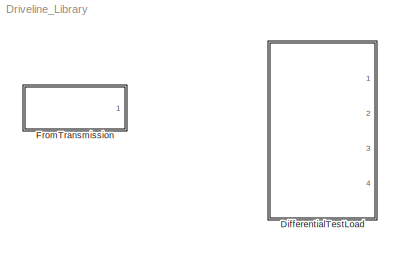
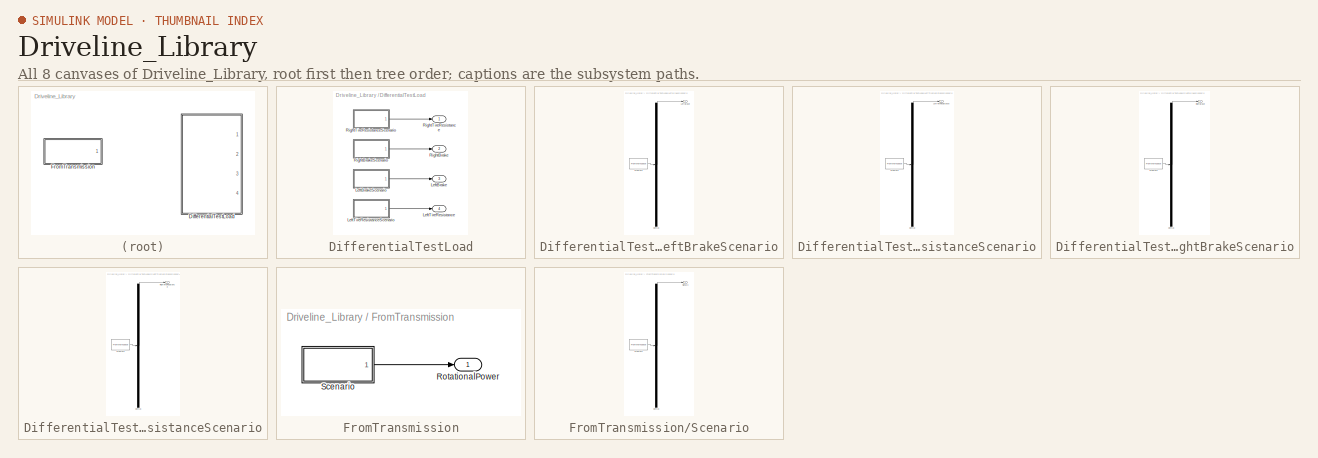
[diagram: thumbnail index - all 8 canvases of the model, root first then tree order]
MODEL Driveline_Library
KIND model
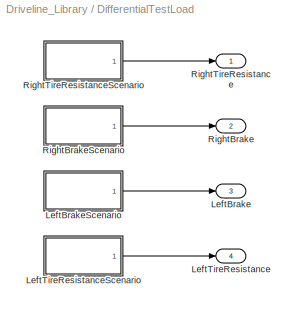
BLOCK [SubSystem] DifferentialTestLoad
  FunctionWithSeparateData = off
  MaskHideContents = off
  MinAlgLoopOccurrences = off
  Opaque = off
  Ports = [0, 4]
  PropExecContextOutsideSubsystem = off
  RTWSystemCode = Auto
  RequestExecContextInheritance = off
  SID = 4
BLOCK [Outport] DifferentialTestLoad/LeftBrake
  IconDisplay = Port number
  OutDataType = fixdt(1, 16)
  OutScaling = 2^0
  Port = 3
  SID = 10
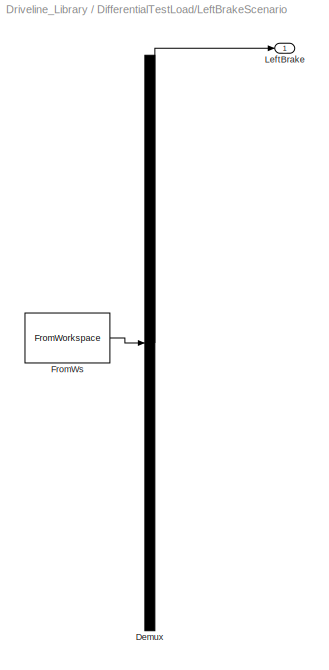
BLOCK [SubSystem] DifferentialTestLoad/LeftBrakeScenario
  ClipboardFcn = sigbuilder_block('clipboard');
  CloseFcn = sigbuilder_block('close');
  CopyFcn = sigbuilder_block('copy');
  DeleteFcn = sigbuilder_block('delete');
  FunctionWithSeparateData = off
  LoadFcn = sigbuilder_block('load');
  MaskCapabilities = slmaskedcaps(gcbh)
  MaskDescription = Create and generate interchangeable groups of signals whose waveforms are piecewise linear.
  MaskDisplay = plot(0,0,100,100,[10,10,40,40,10],[80,20,20,80,80],[40,10],[50,50], [40,27,10],[65,72,56],[40,25,25,10],[28,28,43,43]);
  MaskHideContents = on
  MaskIconFrame = on
  MaskIconOpaque = off
  MaskIconRotate = port
  MaskIconUnits = autoscale
  MaskInitialization = if ~strcmp(get_param(bdroot(gcbh),'SimulationStatus'),'stopped') tuvar = sigbuilder_block('maskInit'); end
  MaskPortRotate = default
  MaskSelfModifiable = on
  MaskType = Sigbuilder block
  MinAlgLoopOccurrences = off
  ModelCloseFcn = sigbuilder_block('modelClose');
  NameChangeFcn = sigbuilder_block('namechange');
  Opaque = off
  OpenFcn = sigbuilder_block('open',[414 28.5 423.75 361.5 ]);
  Ports = [0, 1]
  PreSaveFcn = sigbuilder_block('preSave');
  PropExecContextOutsideSubsystem = off
  RTWSystemCode = Auto
  RequestExecContextInheritance = off
  SID = 25
  StartFcn = sigbuilder_block('start');
  StopFcn = sigbuilder_block('stop');
  Tag = STV Subsys
BLOCK [Demux] DifferentialTestLoad/LeftBrakeScenario/Demux
  Outputs = 1
  Ports = [1, 1]
  SID = 10
  Tag = STV Demux
BLOCK [FromWorkspace] DifferentialTestLoad/LeftBrakeScenario/FromWs
  SID = 11
  SampleTime = 0
  SigBuilderData = DataTag0
  Tag = STV FromWs
  VariableName = tuvar
  VnvData = DataTag1
  ZeroCross = on
BLOCK [Outport] DifferentialTestLoad/LeftBrakeScenario/LeftBrake
  IconDisplay = Port number
  SID = 5
  Tag = STV Outport
BLOCK [Outport] DifferentialTestLoad/LeftTireResistance
  IconDisplay = Port number
  OutDataType = fixdt(1, 16)
  OutScaling = 2^0
  Port = 4
  SID = 12
BLOCK [SubSystem] DifferentialTestLoad/LeftTireResistanceScenario
  ClipboardFcn = sigbuilder_block('clipboard');
  CloseFcn = sigbuilder_block('close');
  CopyFcn = sigbuilder_block('copy');
  DeleteFcn = sigbuilder_block('delete');
  FunctionWithSeparateData = off
  LoadFcn = sigbuilder_block('load');
  MaskCapabilities = slmaskedcaps(gcbh)
  MaskDescription = Create and generate interchangeable groups of signals whose waveforms are piecewise linear.
  MaskDisplay = plot(0,0,100,100,[10,10,40,40,10],[80,20,20,80,80],[40,10],[50,50], [40,27,10],[65,72,56],[40,25,25,10],[28,28,43,43]);
  MaskHideContents = on
  MaskIconFrame = on
  MaskIconOpaque = off
  MaskIconRotate = port
  MaskIconUnits = autoscale
  MaskInitialization = if ~strcmp(get_param(bdroot(gcbh),'SimulationStatus'),'stopped') tuvar = sigbuilder_block('maskInit'); end
  MaskPortRotate = default
  MaskSelfModifiable = on
  MaskType = Sigbuilder block
  MinAlgLoopOccurrences = off
  ModelCloseFcn = sigbuilder_block('modelClose');
  NameChangeFcn = sigbuilder_block('namechange');
  Opaque = off
  OpenFcn = sigbuilder_block('open',[11.25 31.5 390 361.5 ]);
  Ports = [0, 1]
  PreSaveFcn = sigbuilder_block('preSave');
  PropExecContextOutsideSubsystem = off
  RTWSystemCode = Auto
  RequestExecContextInheritance = off
  SID = 26
  StartFcn = sigbuilder_block('start');
  StopFcn = sigbuilder_block('stop');
  Tag = STV Subsys
BLOCK [Demux] DifferentialTestLoad/LeftTireResistanceScenario/Demux
  Outputs = 1
  Ports = [1, 1]
  SID = 10
  Tag = STV Demux
BLOCK [FromWorkspace] DifferentialTestLoad/LeftTireResistanceScenario/FromWs
  SID = 11
  SampleTime = 0
  SigBuilderData = DataTag2
  Tag = STV FromWs
  VariableName = tuvar
  VnvData = DataTag3
  ZeroCross = on
BLOCK [Outport] DifferentialTestLoad/LeftTireResistanceScenario/LeftTireResistance
  IconDisplay = Port number
  SID = 5
  Tag = STV Outport
BLOCK [Outport] DifferentialTestLoad/RightBrake
  IconDisplay = Port number
  OutDataType = fixdt(1, 16)
  OutScaling = 2^0
  Port = 2
  SID = 8
BLOCK [SubSystem] DifferentialTestLoad/RightBrakeScenario
  ClipboardFcn = sigbuilder_block('clipboard');
  CloseFcn = sigbuilder_block('close');
  CopyFcn = sigbuilder_block('copy');
  DeleteFcn = sigbuilder_block('delete');
  FunctionWithSeparateData = off
  LoadFcn = sigbuilder_block('load');
  MaskCapabilities = slmaskedcaps(gcbh)
  MaskDescription = Create and generate interchangeable groups of signals whose waveforms are piecewise linear.
  MaskDisplay = plot(0,0,100,100,[10,10,40,40,10],[80,20,20,80,80],[40,10],[50,50], [40,27,10],[65,72,56],[40,25,25,10],[28,28,43,43]);
  MaskHideContents = on
  MaskIconFrame = on
  MaskIconOpaque = off
  MaskIconRotate = port
  MaskIconUnits = autoscale
  MaskInitialization = if ~strcmp(get_param(bdroot(gcbh),'SimulationStatus'),'stopped') tuvar = sigbuilder_block('maskInit'); end
  MaskPortRotate = default
  MaskSelfModifiable = on
  MaskType = Sigbuilder block
  MinAlgLoopOccurrences = off
  ModelCloseFcn = sigbuilder_block('modelClose');
  NameChangeFcn = sigbuilder_block('namechange');
  Opaque = off
  OpenFcn = sigbuilder_block('open',[414 366.75 422.25 354.75 ]);
  Ports = [0, 1]
  PreSaveFcn = sigbuilder_block('preSave');
  PropExecContextOutsideSubsystem = off
  RTWSystemCode = Auto
  RequestExecContextInheritance = off
  SID = 27
  StartFcn = sigbuilder_block('start');
  StopFcn = sigbuilder_block('stop');
  Tag = STV Subsys
BLOCK [Demux] DifferentialTestLoad/RightBrakeScenario/Demux
  Outputs = 1
  Ports = [1, 1]
  SID = 10
  Tag = STV Demux
BLOCK [FromWorkspace] DifferentialTestLoad/RightBrakeScenario/FromWs
  SID = 11
  SampleTime = 0
  SigBuilderData = DataTag4
  Tag = STV FromWs
  VariableName = tuvar
  VnvData = DataTag5
  ZeroCross = on
BLOCK [Outport] DifferentialTestLoad/RightBrakeScenario/RightBrake
  IconDisplay = Port number
  SID = 5
  Tag = STV Outport
BLOCK [Outport] DifferentialTestLoad/RightTireResistance
  IconDisplay = Port number
  OutDataType = fixdt(1, 16)
  OutScaling = 2^0
  SID = 6
BLOCK [SubSystem] DifferentialTestLoad/RightTireResistanceScenario
  ClipboardFcn = sigbuilder_block('clipboard');
  CloseFcn = sigbuilder_block('close');
  CopyFcn = sigbuilder_block('copy');
  DeleteFcn = sigbuilder_block('delete');
  FunctionWithSeparateData = off
  LoadFcn = sigbuilder_block('load');
  MaskCapabilities = slmaskedcaps(gcbh)
  MaskDescription = Create and generate interchangeable groups of signals whose waveforms are piecewise linear.
  MaskDisplay = plot(0,0,100,100,[10,10,40,40,10],[80,20,20,80,80],[40,10],[50,50], [40,27,10],[65,72,56],[40,25,25,10],[28,28,43,43]);
  MaskHideContents = on
  MaskIconFrame = on
  MaskIconOpaque = off
  MaskIconRotate = port
  MaskIconUnits = autoscale
  MaskInitialization = if ~strcmp(get_param(bdroot(gcbh),'SimulationStatus'),'stopped') tuvar = sigbuilder_block('maskInit'); end
  MaskPortRotate = default
  MaskSelfModifiable = on
  MaskType = Sigbuilder block
  MinAlgLoopOccurrences = off
  ModelCloseFcn = sigbuilder_block('modelClose');
  NameChangeFcn = sigbuilder_block('namechange');
  Opaque = off
  OpenFcn = sigbuilder_block('open',[9.75 363.75 392.25 354.75 ]);
  Ports = [0, 1]
  PreSaveFcn = sigbuilder_block('preSave');
  PropExecContextOutsideSubsystem = off
  RTWSystemCode = Auto
  RequestExecContextInheritance = off
  SID = 28
  StartFcn = sigbuilder_block('start');
  StopFcn = sigbuilder_block('stop');
  Tag = STV Subsys
BLOCK [Demux] DifferentialTestLoad/RightTireResistanceScenario/Demux
  Outputs = 1
  Ports = [1, 1]
  SID = 10
  Tag = STV Demux
BLOCK [FromWorkspace] DifferentialTestLoad/RightTireResistanceScenario/FromWs
  SID = 11
  SampleTime = 0
  SigBuilderData = DataTag6
  Tag = STV FromWs
  VariableName = tuvar
  VnvData = DataTag7
  ZeroCross = on
BLOCK [Outport] DifferentialTestLoad/RightTireResistanceScenario/RightTireResistance
  IconDisplay = Port number
  SID = 5
  Tag = STV Outport
BLOCK [SubSystem] FromTransmission
  FunctionWithSeparateData = off
  MaskHideContents = off
  MinAlgLoopOccurrences = off
  Opaque = off
  Ports = [0, 1]
  PropExecContextOutsideSubsystem = off
  RTWSystemCode = Auto
  RequestExecContextInheritance = off
  SID = 1
BLOCK [Outport] FromTransmission/RotationalPower
  IconDisplay = Port number
  OutDataType = fixdt(1, 16)
  OutScaling = 2^0
  SID = 3
BLOCK [SubSystem] FromTransmission/Scenario
  ClipboardFcn = sigbuilder_block('clipboard');
  CloseFcn = sigbuilder_block('close');
  CopyFcn = sigbuilder_block('copy');
  DeleteFcn = sigbuilder_block('delete');
  FunctionWithSeparateData = off
  LoadFcn = sigbuilder_block('load');
  MaskCapabilities = slmaskedcaps(gcbh)
  MaskDescription = Create and generate interchangeable groups of signals whose waveforms are piecewise linear.
  MaskDisplay = plot(0,0,100,100,[10,10,40,40,10],[80,20,20,80,80],[40,10],[50,50], [40,27,10],[65,72,56],[40,25,25,10],[28,28,43,43]);
  MaskHideContents = on
  MaskIconFrame = on
  MaskIconOpaque = off
  MaskIconRotate = port
  MaskIconUnits = autoscale
  MaskInitialization = if ~strcmp(get_param(bdroot(gcbh),'SimulationStatus'),'stopped') tuvar = sigbuilder_block('maskInit'); end
  MaskPortRotate = default
  MaskSelfModifiable = on
  MaskType = Sigbuilder block
  MinAlgLoopOccurrences = off
  ModelCloseFcn = sigbuilder_block('modelClose');
  NameChangeFcn = sigbuilder_block('namechange');
  Opaque = off
  OpenFcn = sigbuilder_block('open',[437.25 199.5 550.5 399.75 ]);
  Ports = [0, 1]
  PreSaveFcn = sigbuilder_block('preSave');
  PropExecContextOutsideSubsystem = off
  RTWSystemCode = Auto
  RequestExecContextInheritance = off
  SID = 2
  StartFcn = sigbuilder_block('start');
  StopFcn = sigbuilder_block('stop');
  Tag = STV Subsys
BLOCK [Demux] FromTransmission/Scenario/Demux
  Outputs = 1
  Ports = [1, 1]
  SID = 10
  Tag = STV Demux
BLOCK [FromWorkspace] FromTransmission/Scenario/FromWs
  SID = 11
  SampleTime = 0
  SigBuilderData = DataTag8
  Tag = STV FromWs
  VariableName = tuvar
  VnvData = DataTag9
  ZeroCross = on
BLOCK [Outport] FromTransmission/Scenario/Signal 3
  IconDisplay = Port number
  SID = 5
  Tag = STV Outport
LINE DifferentialTestLoad/LeftBrakeScenario/Demux:1 -> DifferentialTestLoad/LeftBrakeScenario/LeftBrake:1
LINE DifferentialTestLoad/LeftBrakeScenario/FromWs:1 -> DifferentialTestLoad/LeftBrakeScenario/Demux:1
LINE DifferentialTestLoad/LeftBrakeScenario:1 -> DifferentialTestLoad/LeftBrake:1
LINE DifferentialTestLoad/LeftTireResistanceScenario/Demux:1 -> DifferentialTestLoad/LeftTireResistanceScenario/LeftTireResistance:1
LINE DifferentialTestLoad/LeftTireResistanceScenario/FromWs:1 -> DifferentialTestLoad/LeftTireResistanceScenario/Demux:1
LINE DifferentialTestLoad/LeftTireResistanceScenario:1 -> DifferentialTestLoad/LeftTireResistance:1
LINE DifferentialTestLoad/RightBrakeScenario/Demux:1 -> DifferentialTestLoad/RightBrakeScenario/RightBrake:1
LINE DifferentialTestLoad/RightBrakeScenario/FromWs:1 -> DifferentialTestLoad/RightBrakeScenario/Demux:1
LINE DifferentialTestLoad/RightBrakeScenario:1 -> DifferentialTestLoad/RightBrake:1
LINE DifferentialTestLoad/RightTireResistanceScenario/Demux:1 -> DifferentialTestLoad/RightTireResistanceScenario/RightTireResistance:1
LINE DifferentialTestLoad/RightTireResistanceScenario/FromWs:1 -> DifferentialTestLoad/RightTireResistanceScenario/Demux:1
LINE DifferentialTestLoad/RightTireResistanceScenario:1 -> DifferentialTestLoad/RightTireResistance:1
LINE FromTransmission/Scenario/Demux:1 -> FromTransmission/Scenario/Signal 3:1
LINE FromTransmission/Scenario/FromWs:1 -> FromTransmission/Scenario/Demux:1
LINE FromTransmission/Scenario:1 -> FromTransmission/RotationalPower:1
